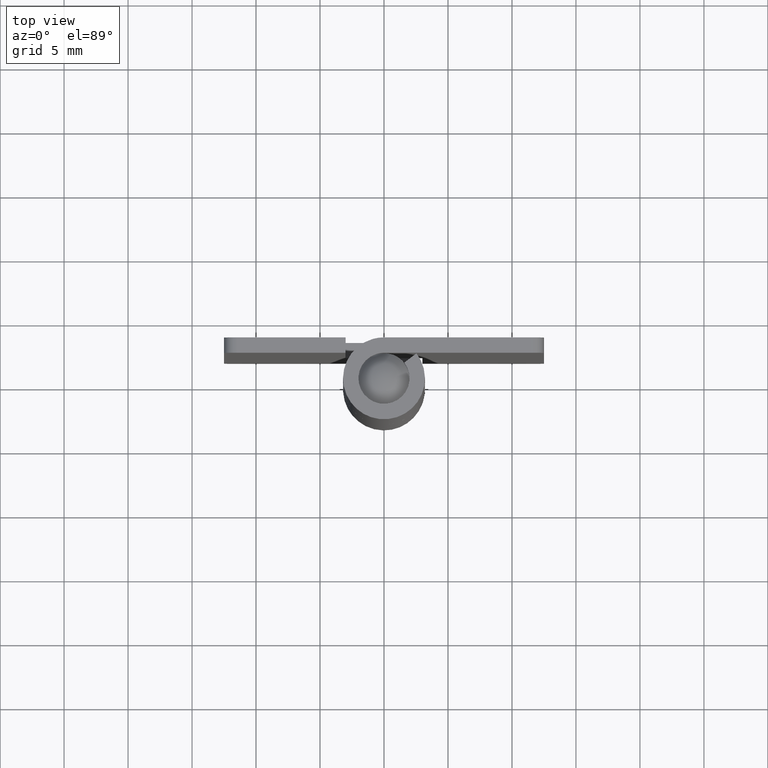
[diagram: clean part render]
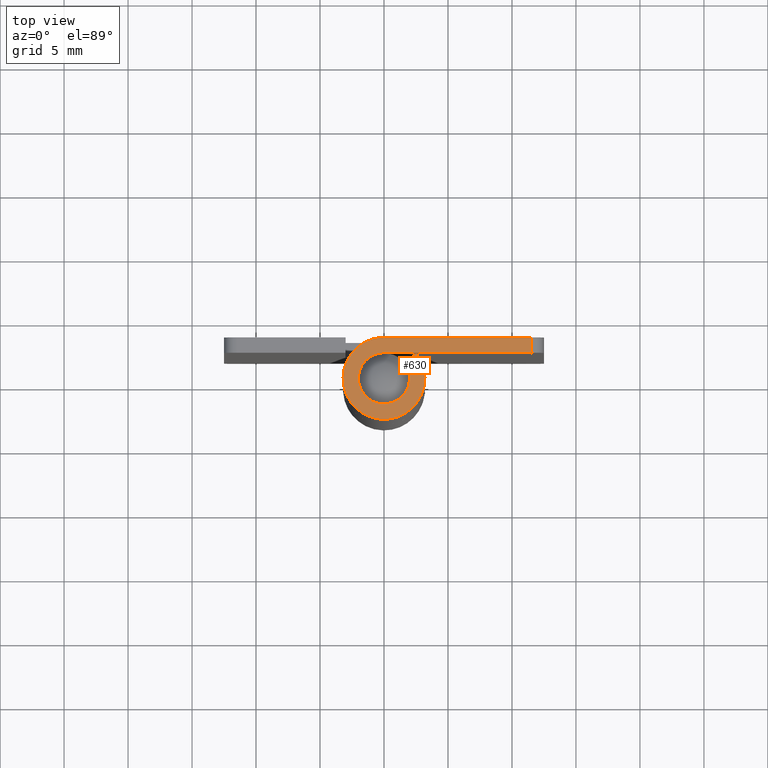
[diagram: same view with one face highlighted and labeled with its STEP entity id]
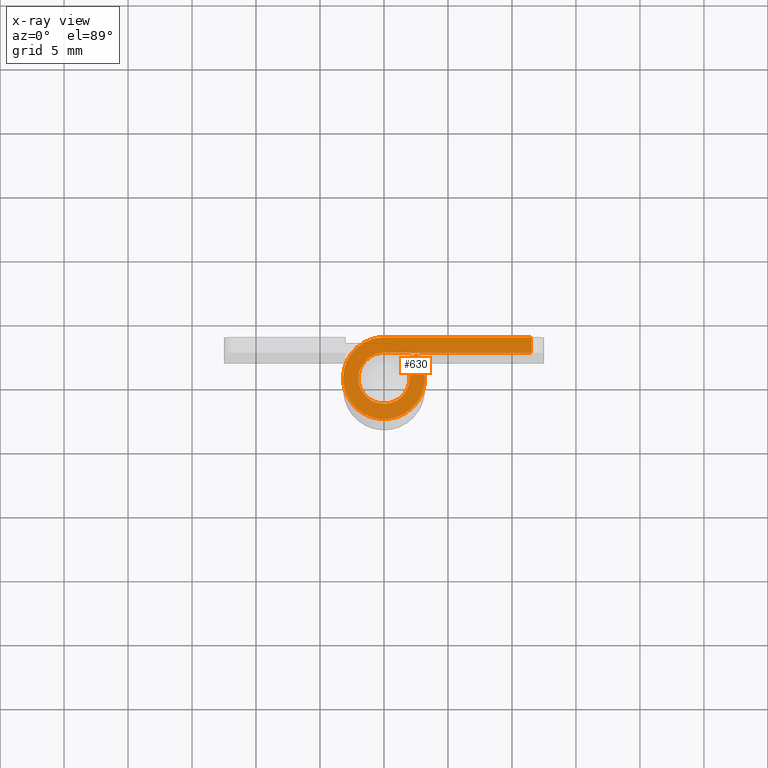
[diagram: x-ray of the same camera — body ghosted, the highlighted face saturated]
A machine part, top view. The second image highlights one B-rep face of the part: STEP entity #630.
The next image is the same camera in x-ray: the body ghosted, the highlighted face saturated — about 0% of this face is hidden behind the body in this view.
In plain terms, the highlighted face is a freeform B-spline surface patch.
Its self-contained STEP definition (entity closure, byte-faithful):
#455=CARTESIAN_POINT('',(11.500000000000000,2.0,50.0));
#456=VERTEX_POINT('',#455);
#477=CARTESIAN_POINT('',(11.500000000000000,3.200001000000000,50.0));
#478=VERTEX_POINT('',#477);
#492=CARTESIAN_POINT('',(11.500000000000000,3.200001000000000,50.0));
#493=CARTESIAN_POINT('',(11.500000000000000,2.0,50.0));
#494=QUASI_UNIFORM_CURVE('',1,(#492,#493),.UNSPECIFIED.,.F.,.U.);
#495=EDGE_CURVE('',#478,#456,#494,.T.);
#561=CARTESIAN_POINT('',(-3.931645598228938,-3.509202149736047,50.0));
#562=CARTESIAN_POINT('',(12.234140752468130,-3.509202149736047,50.0));
#563=CARTESIAN_POINT('',(-3.931645598228938,3.519182737129452,50.0));
#564=CARTESIAN_POINT('',(12.234140752468130,3.519182737129452,50.0));
#565=B_SPLINE_SURFACE_WITH_KNOTS('',1,1,((#561,#563),(#562,#564)),.UNSPECIFIED.,.F.,.F.,.U.,(2,2),(2,2),(0.0,16.165786350697061),(0.0,7.028384886865498),.UNSPECIFIED.);
#566=CARTESIAN_POINT('',(-3.673819E-016,2.0,50.0));
#567=VERTEX_POINT('',#566);
#568=CARTESIAN_POINT('',(11.500000000000000,2.0,50.0));
#569=CARTESIAN_POINT('',(-3.673819E-016,2.0,50.0));
#570=QUASI_UNIFORM_CURVE('',1,(#568,#569),.UNSPECIFIED.,.F.,.U.);
#571=EDGE_CURVE('',#456,#567,#570,.T.);
#572=ORIENTED_EDGE('',*,*,#571,.F.);
#573=ORIENTED_EDGE('',*,*,#495,.F.);
#574=CARTESIAN_POINT('',(-5.878112E-016,3.200001000000000,50.0));
#575=VERTEX_POINT('',#574);
#576=CARTESIAN_POINT('',(-5.878112E-016,3.200001000000000,50.0));
#577=CARTESIAN_POINT('',(11.500000000000000,3.200001000000000,50.0));
#578=QUASI_UNIFORM_CURVE('',1,(#576,#577),.UNSPECIFIED.,.F.,.U.);
#579=EDGE_CURVE('',#575,#478,#578,.T.);
#580=ORIENTED_EDGE('',*,*,#579,.F.);
#581=CARTESIAN_POINT('',(2.537222891273055,1.950000000000000,50.0));
#582=VERTEX_POINT('',#581);
#583=CARTESIAN_POINT('',(2.537222891273055,1.950000000000000,50.0));
#584=CARTESIAN_POINT('',(4.085160166873110,-0.064084342530174,50.000000000000007));
#585=CARTESIAN_POINT('',(2.474810406489891,-2.028624540394518,50.0));
#586=CARTESIAN_POINT('',(0.864460646106671,-3.993164738258862,50.000000000000007));
#587=CARTESIAN_POINT('',(-1.414214400755910,-2.870541220612721,50.0));
#588=CARTESIAN_POINT('',(-3.692889447618491,-1.747917702966579,50.000000000000007));
#589=CARTESIAN_POINT('',(-3.116547308523479,0.726041893983103,50.0));
#590=CARTESIAN_POINT('',(-2.540205169428466,3.200001490932785,50.000000000000007));
#591=CARTESIAN_POINT('',(-5.878112E-016,3.200001000000000,50.0));
#599=(BOUNDED_CURVE()B_SPLINE_CURVE(2,(#583,#584,#585,#586,#587,#588,#589,#590,#591),.UNSPECIFIED.,.F.,.U.)B_SPLINE_CURVE_WITH_KNOTS((3,2,2,2,3),(0.0,0.250000000000000,0.500000000000000,0.750000000000000,1.0),.UNSPECIFIED.)CURVE()GEOMETRIC_REPRESENTATION_ITEM()RATIONAL_B_SPLINE_CURVE((1.0,0.783226629512223,1.0,0.783226629512223,1.0,0.783226629512223,1.0,0.783226629512223,1.0))REPRESENTATION_ITEM(''));
#600=EDGE_CURVE('',#582,#575,#599,.T.);
#601=ORIENTED_EDGE('',*,*,#600,.F.);
#602=CARTESIAN_POINT('',(1.585764307045660,1.218750000000000,50.0));
#603=VERTEX_POINT('',#602);
#604=CARTESIAN_POINT('',(1.585764307045660,1.218750000000000,50.0));
#605=CARTESIAN_POINT('',(2.537222891273055,1.950000000000000,50.0));
#606=QUASI_UNIFORM_CURVE('',1,(#604,#605),.UNSPECIFIED.,.F.,.U.);
#607=EDGE_CURVE('',#603,#582,#606,.T.);
#608=ORIENTED_EDGE('',*,*,#607,.F.);
#609=CARTESIAN_POINT('',(1.585764307045660,1.218750000000000,50.0));
#610=CARTESIAN_POINT('',(2.553225201196828,-0.040052013872739,50.000000000000007));
#611=CARTESIAN_POINT('',(1.546756814501378,-1.267889331445592,50.0));
#612=CARTESIAN_POINT('',(0.540288427805929,-2.495726649018445,50.000000000000007));
#613=CARTESIAN_POINT('',(-0.883883476483184,-1.794087511800916,50.0));
#614=CARTESIAN_POINT('',(-2.308055380772298,-1.092448374583386,50.000000000000007));
#615=CARTESIAN_POINT('',(-1.947841757381979,0.453775812708307,50.0));
#616=CARTESIAN_POINT('',(-1.587628133991661,2.000000000000000,50.000000000000007));
#617=CARTESIAN_POINT('',(0.0,2.0,50.0));
#625=(BOUNDED_CURVE()B_SPLINE_CURVE(2,(#609,#610,#611,#612,#613,#614,#615,#616,#617),.UNSPECIFIED.,.F.,.U.)B_SPLINE_CURVE_WITH_KNOTS((3,2,2,2,3),(0.0,0.250000000000000,0.500000000000000,0.750000000000000,1.0),.UNSPECIFIED.)CURVE()GEOMETRIC_REPRESENTATION_ITEM()RATIONAL_B_SPLINE_CURVE((1.0,0.783226629512223,1.0,0.783226629512223,1.0,0.783226629512223,1.0,0.783226629512223,1.0))REPRESENTATION_ITEM(''));
#626=EDGE_CURVE('',#603,#567,#625,.T.);
#627=ORIENTED_EDGE('',*,*,#626,.T.);
#628=EDGE_LOOP('',(#572,#573,#580,#601,#608,#627));
#629=FACE_OUTER_BOUND('',#628,.T.);
#630=ADVANCED_FACE('',(#629),#565,.T.);